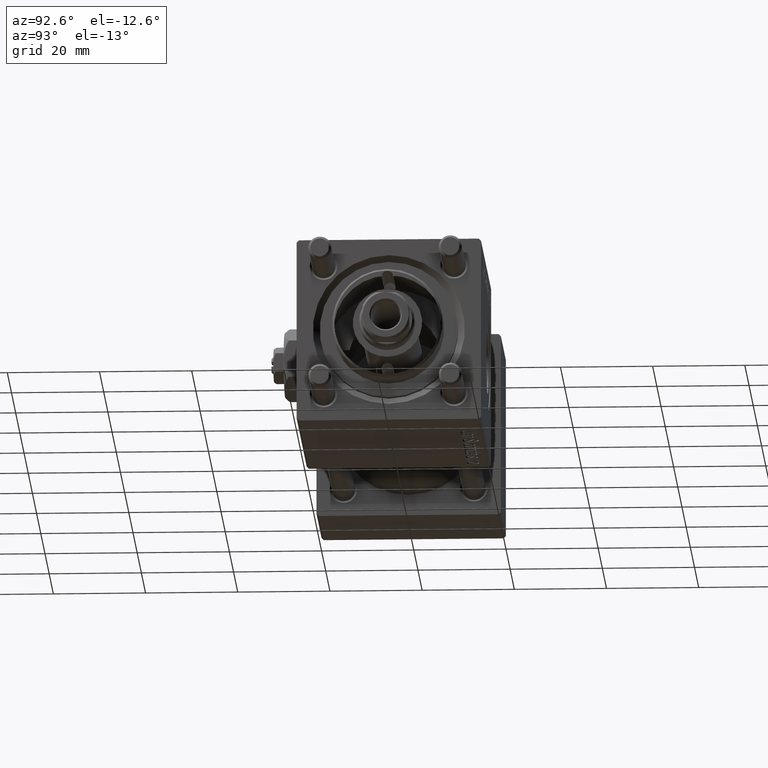
[diagram: clean part render]
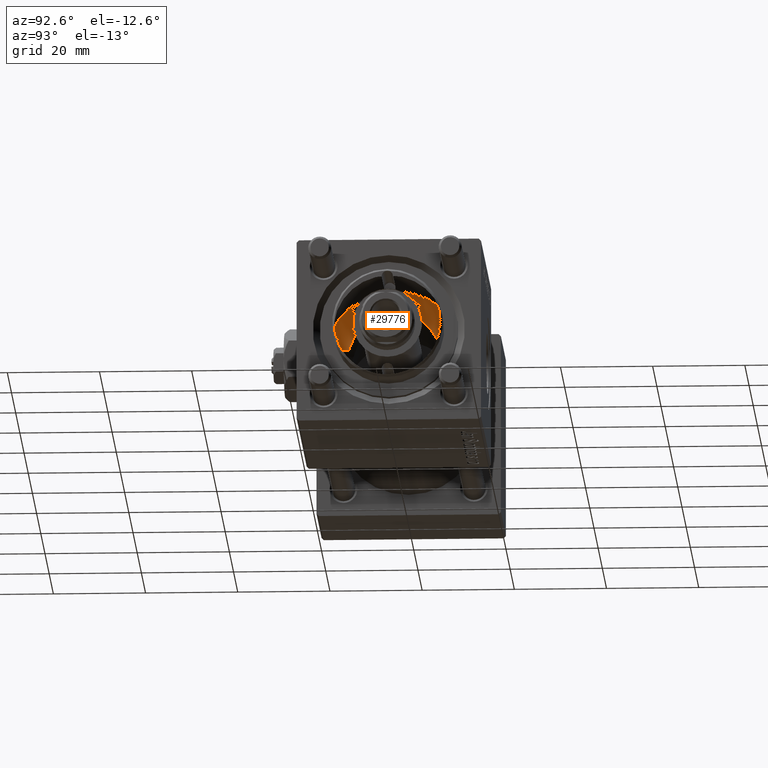
[diagram: same view with one face highlighted and labeled with its STEP entity id]
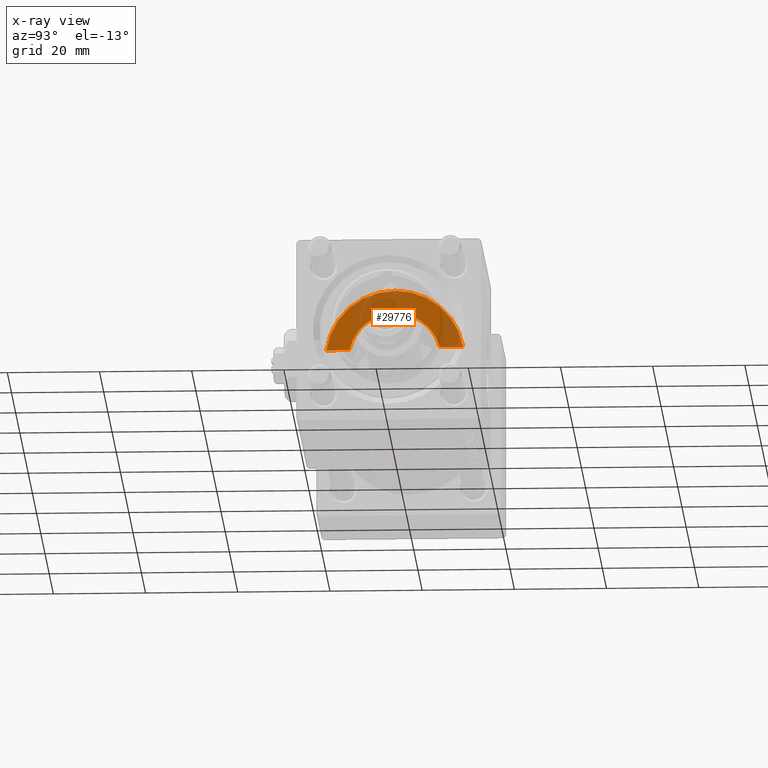
[diagram: x-ray of the same camera — body ghosted, the highlighted face saturated]
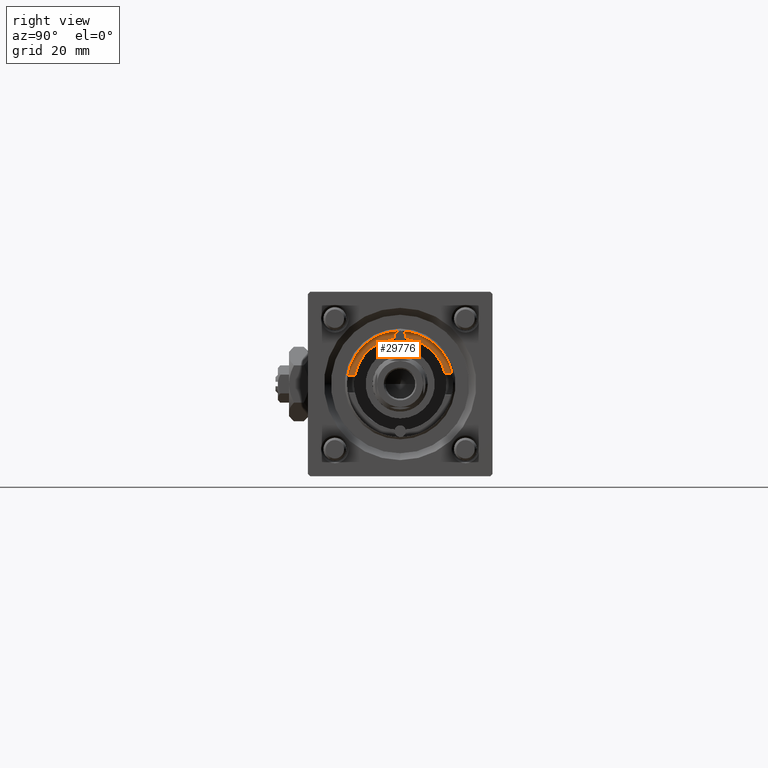
[diagram: same view with one face highlighted and labeled with its STEP entity id]
A machine part, auxiliary view. The second image highlights one B-rep face of the part: STEP entity #29776.
The next image is the same camera in x-ray: the body ghosted, the highlighted face saturated — about 64% of this face is hidden behind the body in this view.
A second angle (right view) of the same face is appended — the face is thin or edge-on in the first view.
In plain terms, the highlighted planar face has unit normal (1, 0, 0).
Its self-contained STEP definition (entity closure, byte-faithful):
#1321 = ORIENTED_EDGE ( 'NONE', *, *, #30846, .F. ) ;
#3854 = CARTESIAN_POINT ( 'NONE',  ( 90.30000000000001137, 0.000000000000000000, 0.000000000000000000 ) ) ;
#3862 = CARTESIAN_POINT ( 'NONE',  ( 90.30000000000001137, -9.818024241159722720, 1.899052395275079741 ) ) ;
#6379 = AXIS2_PLACEMENT_3D ( 'NONE', #3854, #11866, #48031 ) ;
#6871 = CIRCLE ( 'NONE', #54250, 9.999999999999998224 ) ;
#8038 = VERTEX_POINT ( 'NONE', #40338 ) ;
#10686 = VECTOR ( 'NONE', #31903, 1000.000000000000000 ) ;
#11866 = DIRECTION ( 'NONE',  ( 1.000000000000000000, 0.000000000000000000, 0.000000000000000000 ) ) ;
#12195 = EDGE_CURVE ( 'NONE', #8038, #21029, #48020, .T. ) ;
#13536 = EDGE_CURVE ( 'NONE', #39992, #8038, #30067, .T. ) ;
#16605 = ORIENTED_EDGE ( 'NONE', *, *, #55008, .F. ) ;
#16838 = AXIS2_PLACEMENT_3D ( 'NONE', #22757, #50039, #44713 ) ;
#19367 = ORIENTED_EDGE ( 'NONE', *, *, #23645, .F. ) ;
#21029 = VERTEX_POINT ( 'NONE', #31432 ) ;
#21037 = DIRECTION ( 'NONE',  ( 1.000000000000000000, 0.000000000000000000, 0.000000000000000000 ) ) ;
#22757 = CARTESIAN_POINT ( 'NONE',  ( 90.30000000000001137, 0.000000000000000000, 0.000000000000000000 ) ) ;
#23645 = EDGE_CURVE ( 'NONE', #33682, #45548, #38834, .T. ) ;
#24881 = DIRECTION ( 'NONE',  ( 0.000000000000000000, 0.000000000000000000, -1.000000000000000000 ) ) ;
#25173 = PLANE ( 'NONE',  #52279 ) ;
#25682 = CARTESIAN_POINT ( 'NONE',  ( 90.30000000000001137, 9.716130917191257765, 2.365755693219425027 ) ) ;
#26562 = ORIENTED_EDGE ( 'NONE', *, *, #13536, .T. ) ;
#29175 = DIRECTION ( 'NONE',  ( 0.000000000000000000, 0.000000000000000000, -1.000000000000000000 ) ) ;
#29621 = DIRECTION ( 'NONE',  ( 1.000000000000000000, 0.000000000000000000, 0.000000000000000000 ) ) ;
#29776 = ADVANCED_FACE ( 'NONE', ( #52454 ), #25173, .T. ) ;
#30067 = CIRCLE ( 'NONE', #16838, 15.00000000000000000 ) ;
#30846 = EDGE_CURVE ( 'NONE', #39992, #33114, #45272, .T. ) ;
#31432 = CARTESIAN_POINT ( 'NONE',  ( 90.30000000000001137, -14.87930105885353349, 1.899052395275079297 ) ) ;
#31903 = DIRECTION ( 'NONE',  ( 0.000000000000000000, -1.000000000000000000, 0.000000000000000000 ) ) ;
#32391 = DIRECTION ( 'NONE',  ( -0.000000000000000000, -1.000000000000000000, -8.673617379884037937E-17 ) ) ;
#33114 = VERTEX_POINT ( 'NONE', #25682 ) ;
#33339 = DIRECTION ( 'NONE',  ( 1.000000000000000000, 0.000000000000000000, 0.000000000000000000 ) ) ;
#33682 = VERTEX_POINT ( 'NONE', #48181 ) ;
#34044 = CARTESIAN_POINT ( 'NONE',  ( 90.30000000000001137, 20.00100000000008293, 1.899052395275081961 ) ) ;
#34975 = CARTESIAN_POINT ( 'NONE',  ( 90.30000000000001137, 0.000000000000000000, 0.000000000000000000 ) ) ;
#35619 = ORIENTED_EDGE ( 'NONE', *, *, #12195, .T. ) ;
#37303 = CARTESIAN_POINT ( 'NONE',  ( 90.30000000000001137, 14.81226518801226000, 2.365755693219425027 ) ) ;
#37800 = CARTESIAN_POINT ( 'NONE',  ( 90.30000000000001137, 0.000000000000000000, 0.000000000000000000 ) ) ;
#38834 = CIRCLE ( 'NONE', #53008, 9.999999999999998224 ) ;
#39696 = EDGE_CURVE ( 'NONE', #45548, #21029, #45756, .T. ) ;
#39992 = VERTEX_POINT ( 'NONE', #37303 ) ;
#40338 = CARTESIAN_POINT ( 'NONE',  ( 90.30000000000001137, 1.836970198721029589E-15, 15.00000000000000000 ) ) ;
#42394 = CARTESIAN_POINT ( 'NONE',  ( 90.30000000000001137, 0.000000000000000000, 0.000000000000000000 ) ) ;
#43772 = EDGE_LOOP ( 'NONE', ( #55632, #19367, #16605, #1321, #26562, #35619 ) ) ;
#44713 = DIRECTION ( 'NONE',  ( 0.000000000000000000, 0.000000000000000000, -1.000000000000000000 ) ) ;
#45272 = LINE ( 'NONE', #54448, #10686 ) ;
#45548 = VERTEX_POINT ( 'NONE', #3862 ) ;
#45756 = LINE ( 'NONE', #34044, #46355 ) ;
#46355 = VECTOR ( 'NONE', #32391, 1000.000000000000000 ) ;
#48020 = CIRCLE ( 'NONE', #6379, 15.00000000000000000 ) ;
#48031 = DIRECTION ( 'NONE',  ( 0.000000000000000000, 0.000000000000000000, -1.000000000000000000 ) ) ;
#48181 = CARTESIAN_POINT ( 'NONE',  ( 90.30000000000001137, 1.224646799147353059E-15, 9.999999999999998224 ) ) ;
#48911 = DIRECTION ( 'NONE',  ( 0.000000000000000000, 0.000000000000000000, -1.000000000000000000 ) ) ;
#50039 = DIRECTION ( 'NONE',  ( 1.000000000000000000, 0.000000000000000000, 0.000000000000000000 ) ) ;
#52279 = AXIS2_PLACEMENT_3D ( 'NONE', #42394, #29621, #24881 ) ;
#52454 = FACE_OUTER_BOUND ( 'NONE', #43772, .T. ) ;
#53008 = AXIS2_PLACEMENT_3D ( 'NONE', #37800, #33339, #29175 ) ;
#54250 = AXIS2_PLACEMENT_3D ( 'NONE', #34975, #21037, #48911 ) ;
#54448 = CARTESIAN_POINT ( 'NONE',  ( 90.30000000000001137, 2.199999999999997069, 2.365755693219425027 ) ) ;
#55008 = EDGE_CURVE ( 'NONE', #33114, #33682, #6871, .T. ) ;
#55632 = ORIENTED_EDGE ( 'NONE', *, *, #39696, .F. ) ;